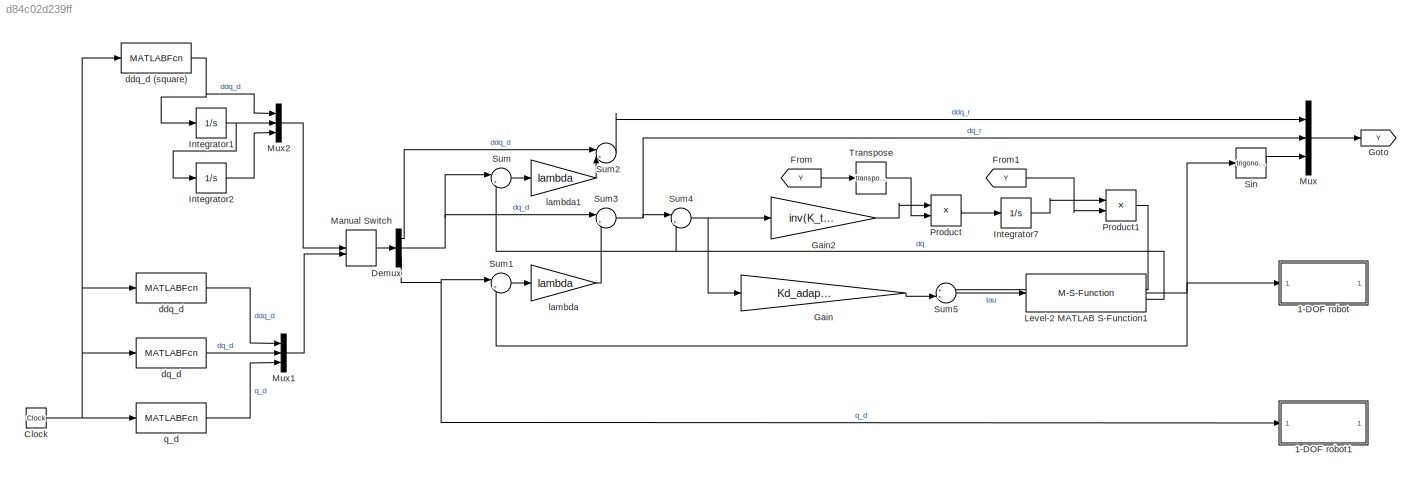
MODEL slx_d84c02d239ff
KIND model
CONFIG AbsTol = auto
CONFIG EnableMultiTasking = off
CONFIG FixedStep = auto
CONFIG MaxStep = auto
CONFIG MinStep = auto
CONFIG RelTol = 1e-3
CONFIG SampleTimeConstraint = Unconstrained
CONFIG SolverName = VariableStepAuto
CONFIG StartTime = 0.0
CONFIG StopTime = 10
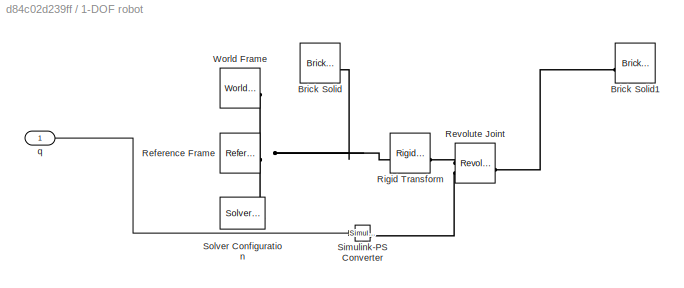
BLOCK [SubSystem] 1-DOF robot
BLOCK [Reference] 1-DOF robot/Brick Solid  REF=sm_lib/Body Elements/Brick Solid
  SourceBlock = sm_lib/Body Elements/Brick Solid
  SourceType = Brick Solid
BLOCK [Reference] 1-DOF robot/Brick Solid1  REF=sm_lib/Body Elements/Brick Solid
  SourceBlock = sm_lib/Body Elements/Brick Solid
  SourceType = Brick Solid
BLOCK [Reference] 1-DOF robot/Reference Frame  REF=sm_lib/Frames and
Transforms/Reference
Frame
  SourceBlock = sm_lib/Frames and\nTransforms/Reference\nFrame
  SourceType = Reference\nFrame
BLOCK [Reference] 1-DOF robot/Revolute Joint  REF=sm_lib/Joints/Revolute Joint
  SourceBlock = sm_lib/Joints/Revolute Joint
  SourceType = Revolute Joint
BLOCK [Reference] 1-DOF robot/Rigid Transform  REF=sm_lib/Frames and
Transforms/Rigid
Transform
  SourceBlock = sm_lib/Frames and\nTransforms/Rigid\nTransform
  SourceType = Rigid\nTransform
BLOCK [Reference] 1-DOF robot/Simulink-PS Converter  REF=nesl_utility/Simulink-PS
Converter
  SourceBlock = nesl_utility/Simulink-PS\nConverter
  SourceType = Simulink-PS\nConverter
BLOCK [Reference] 1-DOF robot/Solver Configuration  REF=nesl_utility/Solver
Configuration
  SourceBlock = nesl_utility/Solver\nConfiguration
  SourceType = Solver\nConfiguration
BLOCK [Reference] 1-DOF robot/World Frame  REF=sm_lib/Frames and
Transforms/World Frame
  SourceBlock = sm_lib/Frames and\nTransforms/World Frame
  SourceType = World Frame
BLOCK [Inport] 1-DOF robot/q
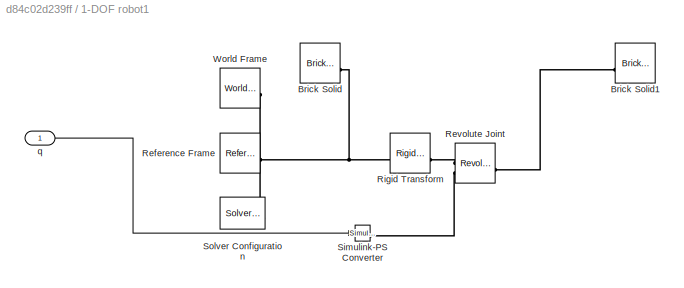
BLOCK [SubSystem] 1-DOF robot1
BLOCK [Reference] 1-DOF robot1/Brick Solid  REF=sm_lib/Body Elements/Brick Solid
  SourceBlock = sm_lib/Body Elements/Brick Solid
  SourceType = Brick Solid
BLOCK [Reference] 1-DOF robot1/Brick Solid1  REF=sm_lib/Body Elements/Brick Solid
  SourceBlock = sm_lib/Body Elements/Brick Solid
  SourceType = Brick Solid
BLOCK [Reference] 1-DOF robot1/Reference Frame  REF=sm_lib/Frames and
Transforms/Reference
Frame
  SourceBlock = sm_lib/Frames and\nTransforms/Reference\nFrame
  SourceType = Reference\nFrame
BLOCK [Reference] 1-DOF robot1/Revolute Joint  REF=sm_lib/Joints/Revolute Joint
  SourceBlock = sm_lib/Joints/Revolute Joint
  SourceType = Revolute Joint
BLOCK [Reference] 1-DOF robot1/Rigid Transform  REF=sm_lib/Frames and
Transforms/Rigid
Transform
  SourceBlock = sm_lib/Frames and\nTransforms/Rigid\nTransform
  SourceType = Rigid\nTransform
BLOCK [Reference] 1-DOF robot1/Simulink-PS Converter  REF=nesl_utility/Simulink-PS
Converter
  SourceBlock = nesl_utility/Simulink-PS\nConverter
  SourceType = Simulink-PS\nConverter
BLOCK [Reference] 1-DOF robot1/Solver Configuration  REF=nesl_utility/Solver
Configuration
  SourceBlock = nesl_utility/Solver\nConfiguration
  SourceType = Solver\nConfiguration
BLOCK [Reference] 1-DOF robot1/World Frame  REF=sm_lib/Frames and
Transforms/World Frame
  SourceBlock = sm_lib/Frames and\nTransforms/World Frame
  SourceType = World Frame
BLOCK [Inport] 1-DOF robot1/q
BLOCK [Clock] Clock
BLOCK [Demux] Demux
  Outputs = 3
BLOCK [From] From
  GotoTag = Y
BLOCK [From] From1
  GotoTag = Y
BLOCK [Gain] Gain
  Gain = Kd_adaptive
  Multiplication = Matrix(K*u)
BLOCK [Gain] Gain2
  Gain = inv(K_theta)
  Multiplication = Matrix(K*u)
BLOCK [Goto] Goto
  GotoTag = Y
BLOCK [Integrator] Integrator1
BLOCK [Integrator] Integrator2
BLOCK [Integrator] Integrator7
  InitialCondition = [0 0 0]
BLOCK [M-S-Function] Level-2 MATLAB S-Function1
  FunctionName = one_DOF_s_function
  Parameters = adaptive_q_i,adaptive_dq_i,adaptive_params
BLOCK [ManualSwitch] Manual Switch
BLOCK [Mux] Mux
  DisplayOption = bar
  Inputs = 3
BLOCK [Mux] Mux1
  DisplayOption = bar
  Inputs = 3
BLOCK [Mux] Mux2
  DisplayOption = bar
  Inputs = 3
BLOCK [Product] Product
  Multiplication = Matrix(*)
BLOCK [Product] Product1
  Multiplication = Matrix(*)
BLOCK [Trigonometry] Sin
BLOCK [Sum] Sum
  Inputs = |+-
BLOCK [Sum] Sum1
  Inputs = |+-
BLOCK [Sum] Sum2
  Inputs = |++
BLOCK [Sum] Sum3
  Inputs = |++
BLOCK [Sum] Sum4
  Inputs = |+-
BLOCK [Sum] Sum5
  Inputs = ++|
BLOCK [Math] Transpose
  Operator = transpose
BLOCK [MATLABFcn] ddq_d
  MATLABFcn = ddtraj_adaptive(u)
BLOCK [MATLABFcn] ddq_d (square)
  MATLABFcn = ddtraj_square_adaptive(u)
BLOCK [MATLABFcn] dq_d
  MATLABFcn = dtraj_adaptive(u)
BLOCK [Gain] lambda
  Gain = lambda
BLOCK [Gain] lambda1
  Gain = lambda
BLOCK [MATLABFcn] q_d
  MATLABFcn = traj_adaptive(u)
LINE 1-DOF robot/q:1 -> 1-DOF robot/Simulink-PS Converter:1
LINE 1-DOF robot1/q:1 -> 1-DOF robot1/Simulink-PS Converter:1
NET Clock:1 -> ddq_d (square):1, ddq_d:1, dq_d:1, q_d:1
LINE Demux:1 -> Sum2:1
NET Demux:2 -> Sum3:1, Sum:1
NET Demux:3 -> 1-DOF robot1:1, Sum1:1
LINE From1:1 -> Product1:2
LINE From:1 -> Transpose:1
LINE Gain2:1 -> Product:1
LINE Gain:1 -> Sum5:2
NET Integrator1:1 -> Integrator2:1, Mux2:2
LINE Integrator2:1 -> Mux2:3
LINE Integrator7:1 -> Product1:1
NET Level-2 MATLAB S-Function1:1 -> 1-DOF robot:1, Sin:1, Sum1:2
NET Level-2 MATLAB S-Function1:2 -> Sum4:2, Sum:2
LINE Manual Switch:1 -> Demux:1
LINE Mux1:1 -> Manual Switch:2
LINE Mux2:1 -> Manual Switch:1
LINE Mux:1 -> Goto:1
LINE Product1:1 -> Sum5:1
LINE Product:1 -> Integrator7:1
LINE Sin:1 -> Mux:3
LINE Sum1:1 -> lambda:1
LINE Sum2:1 -> Mux:1
NET Sum3:1 -> Mux:2, Sum4:1
NET Sum4:1 -> Gain2:1, Gain:1
LINE Sum5:1 -> Level-2 MATLAB S-Function1:1
LINE Sum:1 -> lambda1:1
LINE Transpose:1 -> Product:2
NET ddq_d (square):1 -> Integrator1:1, Mux2:1
LINE ddq_d:1 -> Mux1:1
LINE dq_d:1 -> Mux1:2
LINE lambda1:1 -> Sum2:2
LINE lambda:1 -> Sum3:2
LINE q_d:1 -> Mux1:3
PLINE 1-DOF robot/Brick Solid1:LConn1 -- 1-DOF robot/Revolute Joint:RConn1
PNET net1: 1-DOF robot/Brick Solid:RConn1 -- 1-DOF robot/Reference Frame:RConn1 -- 1-DOF robot/Rigid Transform:LConn1 -- 1-DOF robot/Solver Configuration:RConn1 -- 1-DOF robot/World Frame:RConn1
PLINE 1-DOF robot/Revolute Joint:LConn1 -- 1-DOF robot/Rigid Transform:RConn1
PLINE 1-DOF robot/Revolute Joint:LConn2 -- 1-DOF robot/Simulink-PS Converter:RConn1
PLINE 1-DOF robot1/Brick Solid1:LConn1 -- 1-DOF robot1/Revolute Joint:RConn1
PNET net2: 1-DOF robot1/Brick Solid:RConn1 -- 1-DOF robot1/Reference Frame:RConn1 -- 1-DOF robot1/Rigid Transform:LConn1 -- 1-DOF robot1/Solver Configuration:RConn1 -- 1-DOF robot1/World Frame:RConn1
PLINE 1-DOF robot1/Revolute Joint:LConn1 -- 1-DOF robot1/Rigid Transform:RConn1
PLINE 1-DOF robot1/Revolute Joint:LConn2 -- 1-DOF robot1/Simulink-PS Converter:RConn1
note: NET lines group one-source signal fan-out (src -> all destinations, sorted); 1:1 wires keep LINE; PNET lines group multi-terminal physical nets as a canonical sorted terminal list (undirected conserving connections); 2-terminal nets keep the pairwise PLINE form
